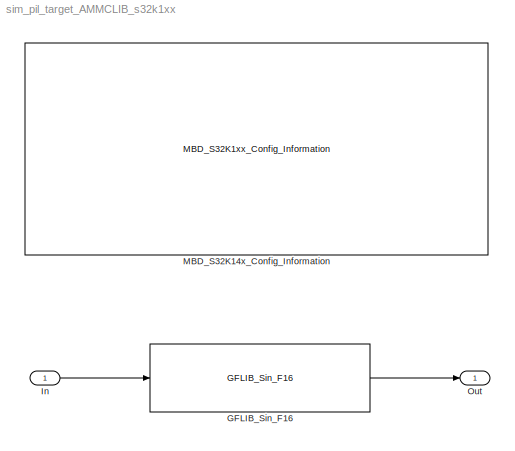
MODEL sim_pil_target_AMMCLIB_s32k1xx
KIND model
CONFIG InitFcn = mbd_s32k_consistency_checks(bdroot(gcs));
BLOCK [Reference] GFLIB_Sin_F16  REF=ammclib_bam_s32k14x/GFLIB/bam_f16/GFLIB_Sin_F16  (lib defined in mdl_f341c9dd7fd9)
  Ports = [1, 1]
  SID = 20
  SourceBlock = ammclib_bam_s32k14x/GFLIB/bam_f16/GFLIB_Sin_F16
  SourceType = GFLIB_Sin_F16
BLOCK [Inport] In
  IconDisplay = Port number
  OutDataTypeStr = int16
  SID = 9
BLOCK [Reference] MBD_S32K14x_Config_Information  REF=mbd_s32k1xx_ec_toolbox/MBD_S32K1xx_Config_Information
  ADC_PcrCheckEnDis = on
  AMMCLIB_PcrCheckEnDis = on
  CMP_PcrCheckEnDis = on
  CSEc_PcrCheckEnDis = on
  ConfigParams_PcrCheckEnDis = on
  FM_PcrCheckEnDis = on
  FTM_Dual_Edge_Inputs_PcrCheckEnDis = on
  FTM_Hall_Sensor_Inputs_PcrCheckEnDis = on
  FTM_Input_Edge_Inputs_PcrCheckEnDis = on
  FTM_PWM_PcrCheckEnDis = on
  FTM_Quadrature_Inputs_PcrCheckEnDis = on
  FlexCAN_PcrCheckEnDis = on
  FlexIO_PcrCheckEnDis = on
  GPIO_InputPcrCheckEnDis = on
  GPIO_OutputPcrCheckEnDis = on
  LIN_PcrCheckEnDis = on
  LPI2C_PcrCheckEnDis = on
  LPSPI_PcrCheckEnDis = on
  LPTMR_PcrCheckEnDis = on
  LPUART_PcrCheckEnDis = on
  ModelRef_PcrCheckEnDis = on
  PDB0_PcrCheckEnDis = on
  PIT_PcrCheckEnDis = on
  Ports = []
  Profile_PcrCheckEnDis = on
  RTC_PcrCheckEnDis = on
  SBC_PcrCheckEnDis = on
  SID = 1
  SourceBlock = mbd_s32k1xx_ec_toolbox/MBD_S32K1xx_Config_Information
  SourceType = MBDTBX_EC_S32K
  WDOG_PcrCheckEnDis = on
  config_params = []
  disp_str = Target : S32K144-64KB_SRAM\nPackage : 100-pin\nSystem clock : 80 MHz\nXTAL clock : External 8 MHz\nCompiler : GCC\nTarget Type : FLASH\nProcessor-In-Loop : (COM1, 115200, OpenSDA: E)\nStep Tick Interrupt Priority : 15
  ds_import_enable = off
  eDMA_PcrCheckEnDis = on
  gcc_target_assemble_opts = -mcpu=cortex-m4 -mthumb -mfloat-abi=hard -mfpu=fpv4-sp-d16 -g
  gcc_target_compile_opts = -mcpu=cortex-m4 -mthumb -mfloat-abi=hard -mfpu=fpv4-sp-d16 -O1 -g -gstrict-dwarf
  gcc_target_default_lcf = on
  gcc_target_link_opts = -mcpu=cortex-m4 -mthumb -mfloat-abi=hard -mfpu=fpv4-sp-d16
  gcc_target_user_lcf = S32K144_64_flash.ld
  ghs_target_assemble_opts = -cpu=cortexm4f -fpu=vfpv4_d16
  ghs_target_compile_opts = -cpu=cortexm4f -thumb -DARM_MATH_CM4 -fpu=vfpv4_d16 -fsingle -Ogeneral -Wundef -Wimplicit-int -Wshadow -Wtrigraphs --no_commons --gnu_asm -gnu99 -gdwarf-2 -G
  ghs_target_default_lcf = off
  ghs_target_link_opts = -cpu=cortexm4f -thumb -fpu=vfpv4_d16
  ghs_target_user_lcf = S32K144_64_flash.ld
  iar_target_assemble_opts = --cpu Cortex-M4F --thumb --fpu VFPv4_sp
  iar_target_compile_opts = --cpu=Cortex-M4F --thumb --fpu=VFPv4_sp -Ol -e --debug --dlib_config normal
  iar_target_default_lcf = off
  iar_target_link_opts = --no_exceptions --vfe --inline
  iar_target_user_lcf = S32K144_64_flash.icf
  mbdt_ver = 0
  mcu_steptick_prio = 15
  mcu_steptick_timer = LPIT Channel 0
  mcu_system_clock_freq = 80
  mcu_target_name = S32K144
  mcu_target_package = 100-LQFP
  mcu_target_sram_size = 64KB
  mcu_xtal_freq = External 8
  pil_download_enable = on
  pil_download_rate = 57600
  pil_opensda_drive = Custom
  pil_opensda_drive_custom = D
  pil_uart_instance = 1
  pil_uart_rx = PTC6: [LPUART1_RX | Receive]
  pil_uart_tx = PTC7: [LPUART1_TX | Transmit]
  rbl_com_port = Custom
  rbl_com_port_custom = COM1
  rbl_download_enable = off
  rbl_download_interface = OpenSDA
  rbl_restart_request = off
  rbl_start_delay = 5000000
  target_compiler = GCC
  target_memory = FLASH
BLOCK [Outport] Out
  IconDisplay = Port number
  SID = 10
LINE GFLIB_Sin_F16:1 -> Out:1
LINE In:1 -> GFLIB_Sin_F16:1
